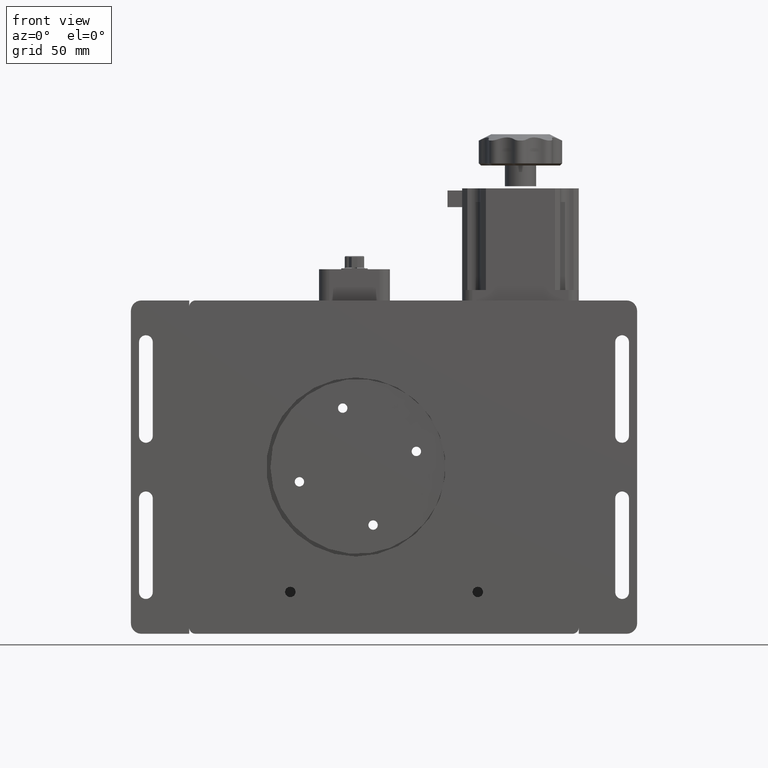
[diagram: clean part render]
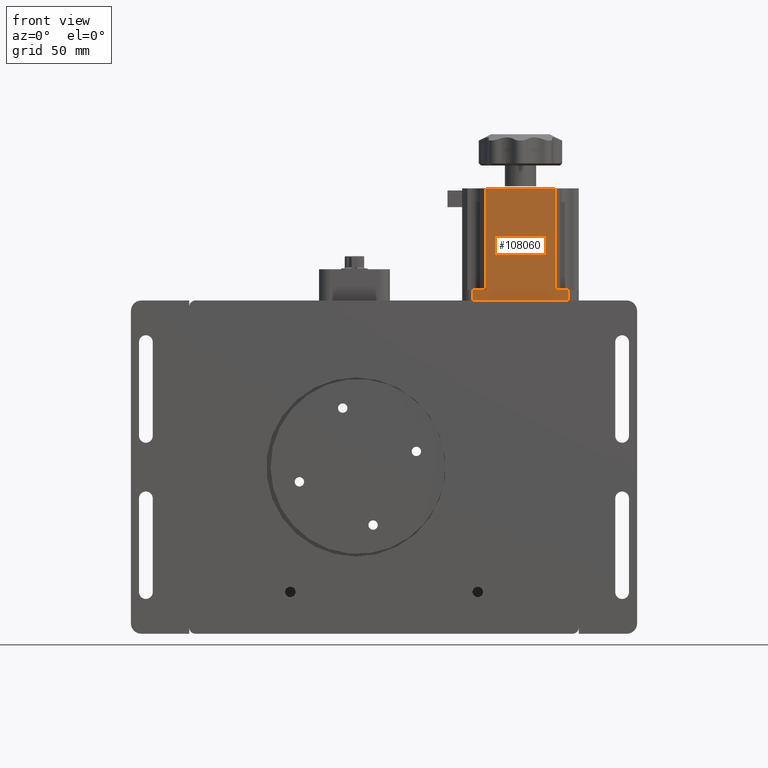
[diagram: same view with one face highlighted and labeled with its STEP entity id]
A machine part, front view. The second image highlights one B-rep face of the part: STEP entity #108060.
In plain terms, the highlighted planar face has unit normal (-0, 1, 0).
Its self-contained STEP definition (entity closure, byte-faithful):
#661 = DIRECTION ( 'NONE',  ( -2.532696274926137900E-016, 1.000000000000000000, 6.319003473856979800E-017 ) ) ;
#724 = ORIENTED_EDGE ( 'NONE', *, *, #20349, .T. ) ;
#2223 = CARTESIAN_POINT ( 'NONE',  ( 269.0699999999999400, -5.000000000000035500, 133.7999999999999800 ) ) ;
#2580 = CARTESIAN_POINT ( 'NONE',  ( 224.4999999999999400, -5.000000000000042600, 80.00000000000001400 ) ) ;
#2622 = EDGE_CURVE ( 'NONE', #2971, #101406, #84033, .T. ) ;
#2971 = VERTEX_POINT ( 'NONE', #88999 ) ;
#4854 = CARTESIAN_POINT ( 'NONE',  ( 275.4999999999999400, -5.000000000000028400, 80.00000000000001400 ) ) ;
#5372 = VECTOR ( 'NONE', #97286, 1000.000000000000000 ) ;
#5682 = CARTESIAN_POINT ( 'NONE',  ( 229.4999999999999400, -5.000000000000046200, 85.00000000000000000 ) ) ;
#5861 = DIRECTION ( 'NONE',  ( -1.000000000000000000, -2.528359466236196300E-016, 1.641121256918006500E-017 ) ) ;
#6095 = CARTESIAN_POINT ( 'NONE',  ( 269.0699999999999400, -5.000000000000032000, 85.00000000000000000 ) ) ;
#6572 = ORIENTED_EDGE ( 'NONE', *, *, #57145, .T. ) ;
#6670 = CARTESIAN_POINT ( 'NONE',  ( 229.4999999999999400, -5.000000000000042600, 80.00000000000001400 ) ) ;
#6968 = VECTOR ( 'NONE', #54944, 1000.000000000000000 ) ;
#8658 = PLANE ( 'NONE',  #90687 ) ;
#10004 = VECTOR ( 'NONE', #88121, 1000.000000000000000 ) ;
#12141 = FACE_OUTER_BOUND ( 'NONE', #104293, .T. ) ;
#12531 = VERTEX_POINT ( 'NONE', #2223 ) ;
#15125 = LINE ( 'NONE', #61472, #34694 ) ;
#20349 = EDGE_CURVE ( 'NONE', #12531, #64054, #96413, .T. ) ;
#21162 = CARTESIAN_POINT ( 'NONE',  ( 224.4999999999999400, -5.000000000000046200, 133.7999999999999800 ) ) ;
#21912 = CARTESIAN_POINT ( 'NONE',  ( 235.9299999999999500, -5.000000000000035500, 85.00000000000000000 ) ) ;
#27511 = LINE ( 'NONE', #21912, #5372 ) ;
#31656 = VECTOR ( 'NONE', #41424, 1000.000000000000000 ) ;
#32974 = CARTESIAN_POINT ( 'NONE',  ( 224.4999999999999400, -5.000000000000042600, 85.00000000000000000 ) ) ;
#34556 = CARTESIAN_POINT ( 'NONE',  ( 235.9299999999999500, -5.000000000000035500, 85.00000000000000000 ) ) ;
#34694 = VECTOR ( 'NONE', #69889, 1000.000000000000000 ) ;
#37285 = LINE ( 'NONE', #105990, #79246 ) ;
#38294 = DIRECTION ( 'NONE',  ( -1.000000000000000000, -2.528359466236196300E-016, 1.641121256918006500E-017 ) ) ;
#39403 = LINE ( 'NONE', #46795, #59082 ) ;
#39954 = ORIENTED_EDGE ( 'NONE', *, *, #66028, .T. ) ;
#41424 = DIRECTION ( 'NONE',  ( -1.000000000000000000, -2.528359466236196300E-016, 1.641121256918006500E-017 ) ) ;
#43794 = VERTEX_POINT ( 'NONE', #5682 ) ;
#46795 = CARTESIAN_POINT ( 'NONE',  ( 229.4999999999999400, -5.000000000000042600, 80.00000000000001400 ) ) ;
#49064 = VERTEX_POINT ( 'NONE', #6095 ) ;
#50716 = CARTESIAN_POINT ( 'NONE',  ( 224.4999999999999400, -5.000000000000042600, 80.00000000000001400 ) ) ;
#53938 = ORIENTED_EDGE ( 'NONE', *, *, #102165, .T. ) ;
#54025 = LINE ( 'NONE', #32974, #31656 ) ;
#54944 = DIRECTION ( 'NONE',  ( 1.641121256918007700E-017, -6.319003473856979800E-017, 1.000000000000000000 ) ) ;
#57145 = EDGE_CURVE ( 'NONE', #49064, #12531, #15125, .T. ) ;
#59082 = VECTOR ( 'NONE', #63641, 1000.000000000000000 ) ;
#59145 = DIRECTION ( 'NONE',  ( -1.641121256918007400E-017, 6.319003473856979800E-017, -1.000000000000000000 ) ) ;
#61472 = CARTESIAN_POINT ( 'NONE',  ( 269.0699999999999400, -5.000000000000032000, 80.00000000000001400 ) ) ;
#63641 = DIRECTION ( 'NONE',  ( -1.641121256918007700E-017, 6.319003473856979800E-017, -1.000000000000000000 ) ) ;
#64054 = VERTEX_POINT ( 'NONE', #77483 ) ;
#65356 = ORIENTED_EDGE ( 'NONE', *, *, #77403, .T. ) ;
#66028 = EDGE_CURVE ( 'NONE', #2971, #78272, #93323, .T. ) ;
#66510 = ORIENTED_EDGE ( 'NONE', *, *, #97785, .T. ) ;
#69889 = DIRECTION ( 'NONE',  ( 1.641121256918007700E-017, -6.319003473856979800E-017, 1.000000000000000000 ) ) ;
#71462 = ORIENTED_EDGE ( 'NONE', *, *, #87016, .T. ) ;
#73601 = VERTEX_POINT ( 'NONE', #34556 ) ;
#77403 = EDGE_CURVE ( 'NONE', #78272, #49064, #37285, .T. ) ;
#77483 = CARTESIAN_POINT ( 'NONE',  ( 235.9299999999999500, -5.000000000000039100, 133.7999999999999800 ) ) ;
#78272 = VERTEX_POINT ( 'NONE', #90799 ) ;
#79246 = VECTOR ( 'NONE', #5861, 1000.000000000000000 ) ;
#84033 = LINE ( 'NONE', #2580, #103634 ) ;
#87016 = EDGE_CURVE ( 'NONE', #64054, #73601, #27511, .T. ) ;
#88121 = DIRECTION ( 'NONE',  ( -1.000000000000000000, -2.528359466236196300E-016, 1.641121256918006500E-017 ) ) ;
#88999 = CARTESIAN_POINT ( 'NONE',  ( 275.4999999999999400, -5.000000000000028400, 80.00000000000001400 ) ) ;
#90687 = AXIS2_PLACEMENT_3D ( 'NONE', #50716, #661, #59145 ) ;
#90799 = CARTESIAN_POINT ( 'NONE',  ( 275.4999999999999400, -5.000000000000028400, 85.00000000000000000 ) ) ;
#93323 = LINE ( 'NONE', #4854, #6968 ) ;
#96413 = LINE ( 'NONE', #21162, #10004 ) ;
#97286 = DIRECTION ( 'NONE',  ( -1.641121256918007700E-017, 6.319003473856979800E-017, -1.000000000000000000 ) ) ;
#97785 = EDGE_CURVE ( 'NONE', #43794, #101406, #39403, .T. ) ;
#101268 = ORIENTED_EDGE ( 'NONE', *, *, #2622, .F. ) ;
#101406 = VERTEX_POINT ( 'NONE', #6670 ) ;
#102165 = EDGE_CURVE ( 'NONE', #73601, #43794, #54025, .T. ) ;
#103634 = VECTOR ( 'NONE', #38294, 1000.000000000000000 ) ;
#104293 = EDGE_LOOP ( 'NONE', ( #65356, #6572, #724, #71462, #53938, #66510, #101268, #39954 ) ) ;
#105990 = CARTESIAN_POINT ( 'NONE',  ( 224.4999999999999400, -5.000000000000042600, 85.00000000000000000 ) ) ;
#108060 = ADVANCED_FACE ( 'NONE', ( #12141 ), #8658, .F. ) ;